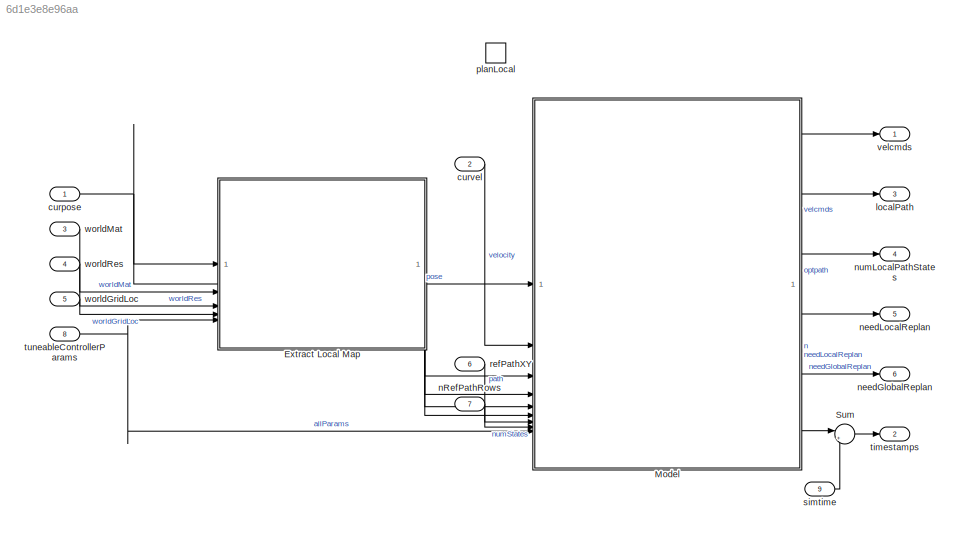
MODEL slx_6d1e3e8e96aa
KIND model
CONFIG AbsTol = auto
CONFIG EnableMultiTasking = off
CONFIG FixedStep = auto
CONFIG MaxStep = auto
CONFIG MinStep = auto
CONFIG RelTol = 1e-3
CONFIG SampleTimeConstraint = STIndependent
CONFIG SolverName = FixedStepAuto
CONFIG StartFcn = % clf\n% rng(1,"twister");\n% set_param([bdroot(gcb) '/TaskControllerIn/Simulink Signals/Confirm New Goal/newGoalBlock'],'Value','goalPose');
CONFIG StartTime = 0.0
CONFIG StopTime = inf
BLOCK [ModelReference] Extract Local Map
  ModelNameDialog = extractLocalMap.slx
  ModelReferenceVersion = 2.14
BLOCK [ModelReference] Model
  ModelNameDialog = MPPIController.slx
  ModelReferenceVersion = 1.164
BLOCK [Sum] Sum
  Inputs = |++
BLOCK [Inport] curpose
  OutDataTypeStr = double
  PortDimensions = 3
  SamplingMode = Sample based
  SignalType = real
BLOCK [Inport] curvel
  OutDataTypeStr = double
  Port = 2
  PortDimensions = [1 2]
  SamplingMode = Sample based
  SignalType = real
BLOCK [Outport] localPath
  OutDataTypeStr = double
  Port = 3
  PortDimensions = [1000 3]
  SamplingMode = Sample based
  SignalType = real
BLOCK [Inport] nRefPathRows
  OutDataTypeStr = double
  Port = 7
  PortDimensions = 1
  SamplingMode = Sample based
  SignalType = real
BLOCK [Outport] needGlobalReplan
  OutDataTypeStr = boolean
  Port = 6
  PortDimensions = 1
  SamplingMode = Sample based
  SignalType = real
BLOCK [Outport] needLocalReplan
  OutDataTypeStr = boolean
  Port = 5
  PortDimensions = 1
  SamplingMode = Sample based
  SignalType = real
BLOCK [Outport] numLocalPathStates
  OutDataTypeStr = double
  Port = 4
  PortDimensions = 1
  SamplingMode = Sample based
  SignalType = real
BLOCK [TriggerPort] planLocal
  PortDimensions = 1
  StatesWhenEnabling = held
  TriggerSignalSampleTime = [0.10000000000000001,0]
  TriggerType = function-call
  VariantControl = (inherit)
BLOCK [Inport] refPathXY
  OutDataTypeStr = double
  Port = 6
  PortDimensions = [10000 3]
  SamplingMode = Sample based
  SignalType = real
BLOCK [Inport] simtime
  OutDataTypeStr = double
  Port = 9
  PortDimensions = 1
  SamplingMode = Sample based
  SignalType = real
BLOCK [Outport] timestamps
  OutDataTypeStr = double
  Port = 2
  PortDimensions = [1000 1]
  SamplingMode = Sample based
  SignalType = real
BLOCK [Inport] tuneableControllerParams
  BusOutputAsStruct = on
  OutDataTypeStr = Bus: controller_bus
  Port = 8
  PortDimensions = 1
BLOCK [Outport] velcmds
  OutDataTypeStr = double
  PortDimensions = [1000 2]
  SamplingMode = Sample based
  SignalType = real
BLOCK [Inport] worldGridLoc
  OutDataTypeStr = double
  Port = 5
  PortDimensions = 2
  SamplingMode = Sample based
  SignalType = real
BLOCK [Inport] worldMat
  OutDataTypeStr = boolean
  Port = 3
  PortDimensions = [1201 1201]
  SamplingMode = Sample based
  SignalType = real
BLOCK [Inport] worldRes
  OutDataTypeStr = double
  Port = 4
  PortDimensions = 1
  SamplingMode = Sample based
  SignalType = real
LINE Extract Local Map:1 -> Model:3
LINE Extract Local Map:2 -> Model:4
LINE Extract Local Map:3 -> Model:5
LINE Extract Local Map:4 -> Model:6
LINE Model:1 -> velcmds:1
LINE Model:2 -> localPath:1
LINE Model:3 -> numLocalPathStates:1
LINE Model:4 -> needLocalReplan:1
LINE Model:5 -> needGlobalReplan:1
LINE Model:6 -> Sum:1
LINE Sum:1 -> timestamps:1
NET curpose:1 -> Extract Local Map:1, Model:1
LINE curvel:1 -> Model:2
LINE nRefPathRows:1 -> Model:8
LINE refPathXY:1 -> Model:7
LINE simtime:1 -> Sum:2
NET tuneableControllerParams:1 -> Extract Local Map:5, Model:9
LINE worldGridLoc:1 -> Extract Local Map:4
LINE worldMat:1 -> Extract Local Map:2
LINE worldRes:1 -> Extract Local Map:3
note: NET lines group one-source signal fan-out (src -> all destinations, sorted); 1:1 wires keep LINE
